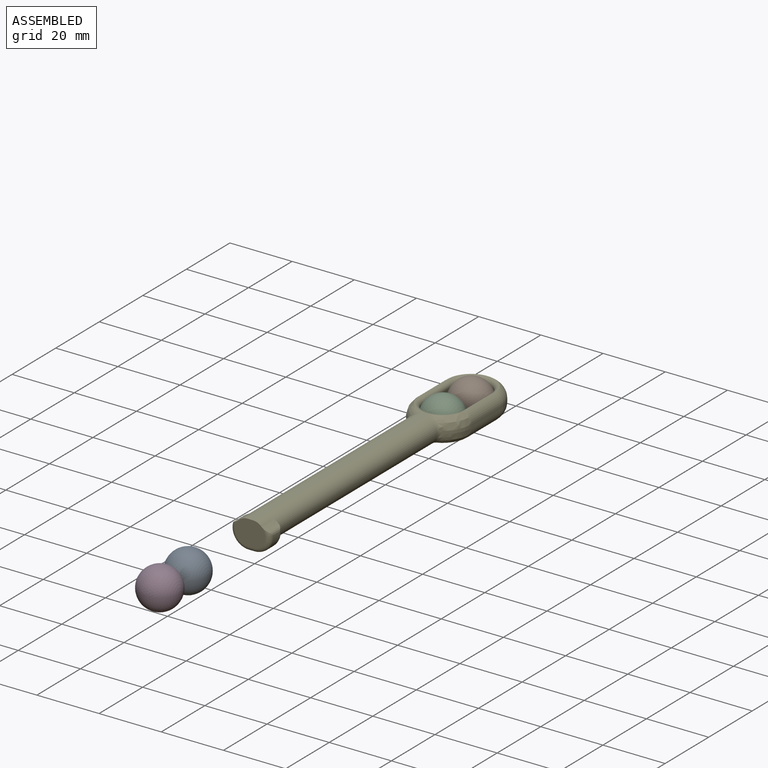
[diagram: assembled view]
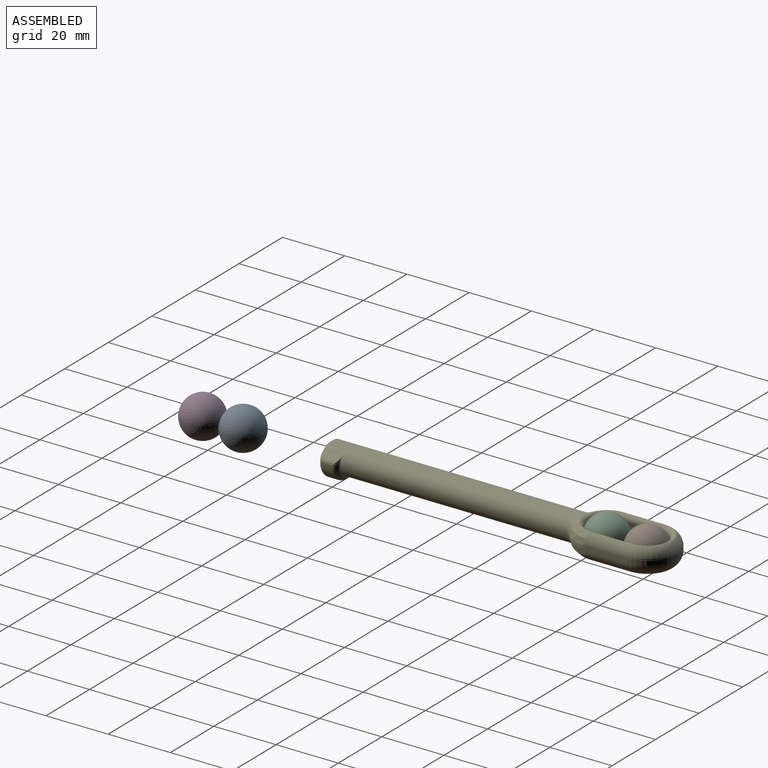
[diagram: assembled view, second angle]
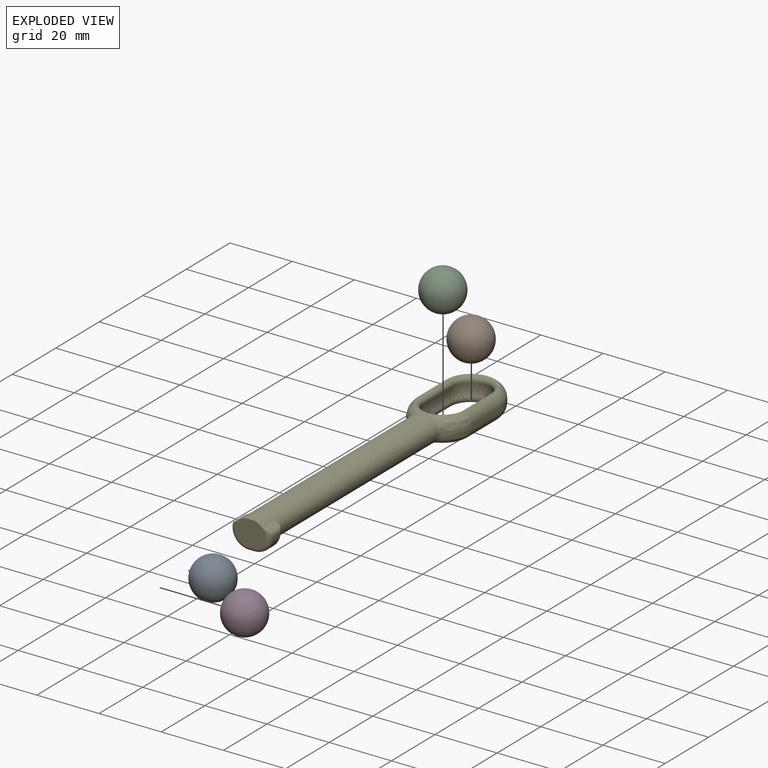
[diagram: exploded view]
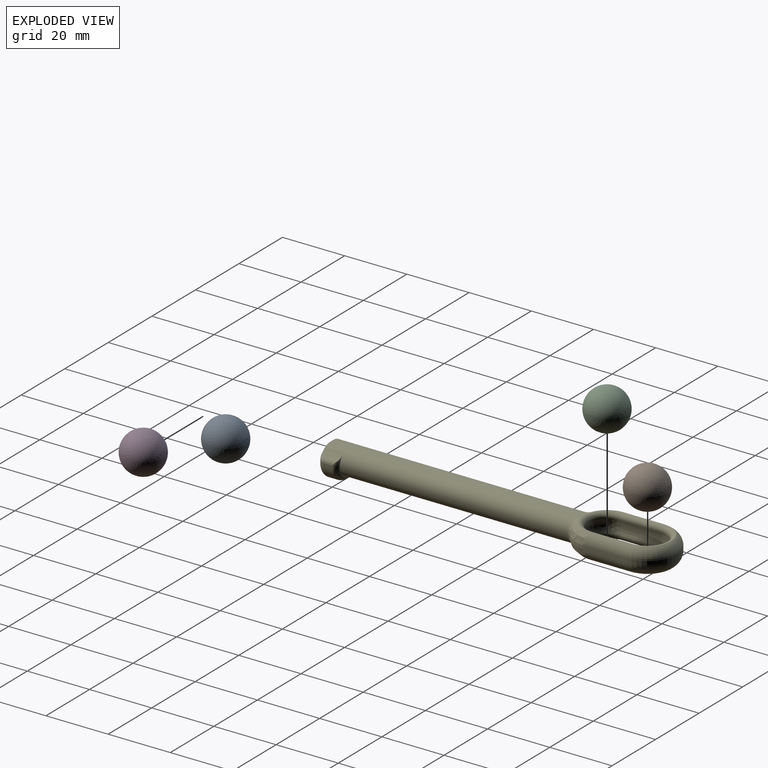
[diagram: exploded view, second angle]
ASSEMBLY  parts=5 mates=2
PART A: 1 faces, bbox 13x13x13 mm
  f0: sphere r=6.5mm, area 530.9mm2
PART B: same geometry as A
PART C: same geometry as A
PART D: same geometry as A
PART E: 59 faces, bbox 20.6x111.8x13 mm
  f0: plane 9.73x8mm, normal (0,-1,0), area 64.1mm2, adj f3,f7,f47,f53,f54,f55
  f1: plane 75x2.46mm, normal (0,0,-1), area 129.6mm2, adj f2,f4,f22,f25,f45,f57
  f2: cylinder r=4mm len=72.93mm, axis (0,-1,0), area 458.3mm2, adj f1,f3,f25,f58
  f3: cylinder r=4mm len=78.93mm, axis (0,1,0), area 477.6mm2, adj f0,f2,f7,f26,f48,f58
  f4: cylinder r=4mm len=72.93mm, axis (0,1,0), area 458.3mm2, adj f1,f45,f47,f56
  f5: plane 13.34x1.19mm, normal (1,0,0), area 15.9mm2, adj f8,f9,f37,f38,f39,f40
  f6: plane 13.34x1.19mm, normal (-1,0,0), area 15.9mm2, adj f9,f10,f31,f32,f33,f34
  f7: plane 81x2.46mm, normal (0,0,1), area 140mm2, adj f0,f3,f18,f26,f46,f47
  f8: cylinder r=9.5mm len=7.62mm, axis (0,0,-1), area 9.1mm2, adj f5,f24,f41,f42
  f9: cylinder r=9.5mm len=19mm, axis (0,0,1), area 35.5mm2, adj f5,f6,f35,f36
  f10: cylinder r=9.5mm len=7.62mm, axis (0,0,-1), area 9.1mm2, adj f6,f23,f29,f30
  f11: cylinder r=6.5mm len=13mm, axis (0,-1,0), area 53.7mm2, adj f13,f14,f16,f20
  f12: cylinder r=6.5mm len=13mm, axis (0,-1,0), area 53.7mm2, adj f13,f14,f17,f21
  f13: sphere r=6.5mm, area 83mm2, adj f11,f12,f18,f22
  f14: sphere r=6.5mm, area 83mm2, adj f11,f12,f15,f19
  f15: torus R=7.6mm, axis (0,0,1), area 58.4mm2, adj f14,f16,f17,f36
  f16: cylinder r=1.5mm len=13mm, axis (0,-1,0), area 36.8mm2, adj f11,f15,f18,f34
  f17: cylinder r=1.5mm len=13mm, axis (0,-1,0), area 36.8mm2, adj f12,f15,f18,f38
  f18: torus R=7.6mm, axis (0,0,1), area 58.4mm2, adj f7,f13,f16,f17,f28,f30,f32,f40
  f19: torus R=7.6mm, axis (0,0,1), area 58.4mm2, adj f14,f20,f21,f35
  f20: cylinder r=1.5mm len=13mm, axis (0,-1,0), area 36.8mm2, adj f11,f19,f22,f33
  f21: cylinder r=1.5mm len=13mm, axis (0,-1,0), area 36.8mm2, adj f12,f19,f22,f37
  f22: torus R=7.6mm, axis (0,0,1), area 58.4mm2, adj f1,f13,f20,f21,f27,f29,f31,f39
  f23: cylinder r=2mm len=0.92mm, axis (0,0,-1), area 0.5mm2, adj f10,f27,f28
  f24: cylinder r=2mm len=0.92mm, axis (0,0,-1), area 0.5mm2, adj f8,f43,f44
  f25: torus R=6mm, axis (0,0,1), area 7.6mm2, adj f1,f2,f26,f27
  f26: torus R=6mm, axis (0,0,1), area 7.6mm2, adj f3,f7,f25,f28
  f27: bspline ~4.44x4mm, area 8.5mm2, adj f22,f23,f25,f29
  f28: bspline ~4.44x4mm, area 8.5mm2, adj f18,f23,f26,f30
  f29: bspline ~7.62x5.18mm, area 34.7mm2, adj f10,f22,f27,f31
  f30: bspline ~9.21x6.36mm, area 34.7mm2, adj f10,f18,f28,f32
  f31: bspline ~3.46x2.03mm, area 1.7mm2, adj f6,f22,f29,f33
  f32: bspline ~3.45x2.01mm, area 1.7mm2, adj f6,f18,f30,f34
  f33: cylinder r=4mm len=13mm, axis (0,-1,0), area 53mm2, adj f6,f20,f31,f35
  f34: cylinder r=4mm len=13mm, axis (0,1,0), area 53mm2, adj f6,f16,f32,f36
  f35: torus R=5.5mm, axis (0,0,-1), area 113.2mm2, adj f9,f19,f33,f37
  f36: torus R=5.5mm, axis (0,0,1), area 113.2mm2, adj f9,f15,f34,f38
  f37: cylinder r=4mm len=13mm, axis (0,-1,0), area 53mm2, adj f5,f21,f35,f39
  f38: cylinder r=4mm len=13mm, axis (0,1,0), area 53mm2, adj f5,f17,f36,f40
  f39: bspline ~3.46x2.03mm, area 1.7mm2, adj f5,f22,f37,f41
  f40: bspline ~3.45x2.01mm, area 1.7mm2, adj f5,f18,f38,f42
  f41: bspline ~9.21x6.36mm, area 34.7mm2, adj f8,f22,f39,f43
  f42: bspline ~7.62x5.18mm, area 34.7mm2, adj f8,f18,f40,f44
  f43: bspline ~4.44x4mm, area 8.5mm2, adj f22,f24,f41,f45
  f44: bspline ~4.44x4mm, area 8.5mm2, adj f18,f24,f42,f46
  f45: torus R=6mm, axis (0,0,1), area 7.6mm2, adj f1,f4,f43,f46
  f46: torus R=6mm, axis (0,0,1), area 7.6mm2, adj f7,f44,f45,f47
  f47: cylinder r=4mm len=78.93mm, axis (0,-1,0), area 477.6mm2, adj f0,f4,f7,f46,f52,f56
  f48: extruded ~6x2.58mm, area 15.9mm2, adj f3,f49,f55,f58
  f49: cylinder r=5.5mm len=6.1mm, axis (0,-1,0), area 27.7mm2, adj f48,f50,f55,f58
  f50: plane 3x1.72mm, normal (0,0,-1), area 5.2mm2, adj f49,f51,f54,f57
  f51: cylinder r=5.5mm len=5.97mm, axis (0,-1,0), area 27.3mm2, adj f50,f52,f53,f56
  f52: extruded ~6x2.59mm, area 16.4mm2, adj f47,f51,f53,f56
  f53: torus R=4mm, axis (0,1,0), area 23.1mm2, adj f0,f51,f52,f54
  f54: cylinder r=1.5mm len=1.72mm, axis (-1,0,0), area 4.1mm2, adj f0,f50,f53,f55
  f55: torus R=4mm, axis (0,1,0), area 23.2mm2, adj f0,f48,f49,f54
  f56: torus R=4mm, axis (0,-1,0), area 23.1mm2, adj f4,f47,f51,f52,f57
  f57: cylinder r=1.5mm len=1.72mm, axis (-1,0,0), area 4.1mm2, adj f1,f50,f56,f58
  f58: torus R=4mm, axis (0,-1,0), area 23.2mm2, adj f2,f3,f48,f49,f57
PLACE A t=(-0.92,-89.25,0.79)mm
PLACE B t=(-0.92,40.75,0.79)mm
PLACE C t=(-0.92,27.75,0.79)mm
PLACE D t=(-0.92,-102.25,0.79)mm
PLACE E t=(-0.92,0.25,0.79)mm
MATE ball B.f0 <-> E.f15  axis (0,0,1) through (-0.92,40.75,0.79)mm
MATE ball C.f0 <-> E.f18  axis (0,0,1) through (-0.92,27.75,0.79)mm
